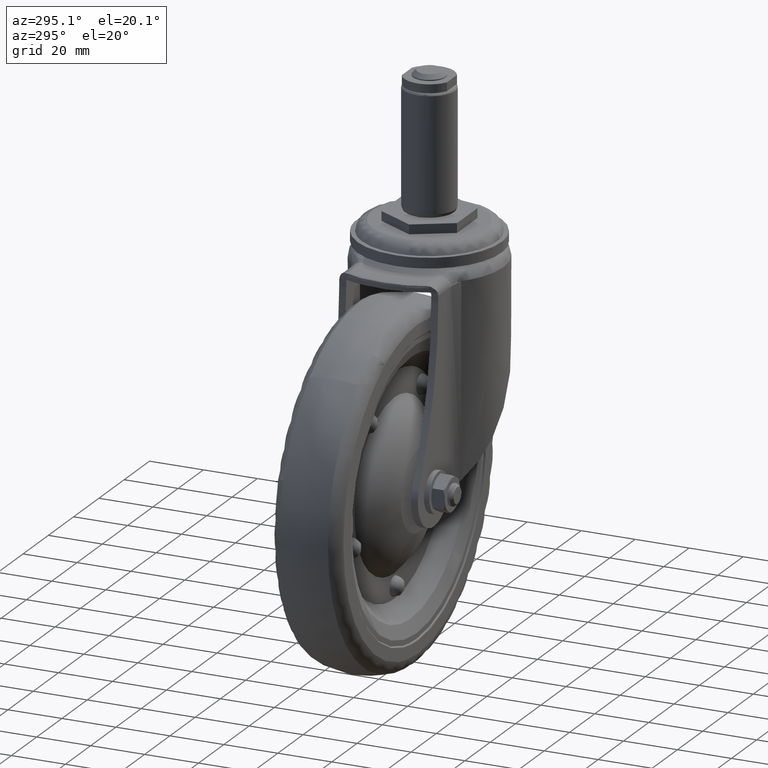
[diagram: clean part render]
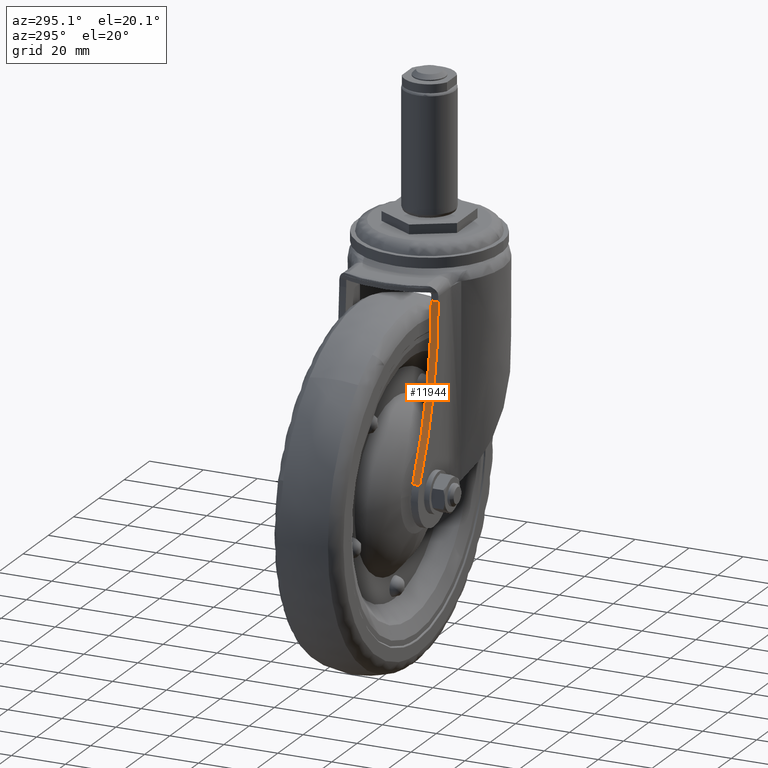
[diagram: same view with one face highlighted and labeled with its STEP entity id]
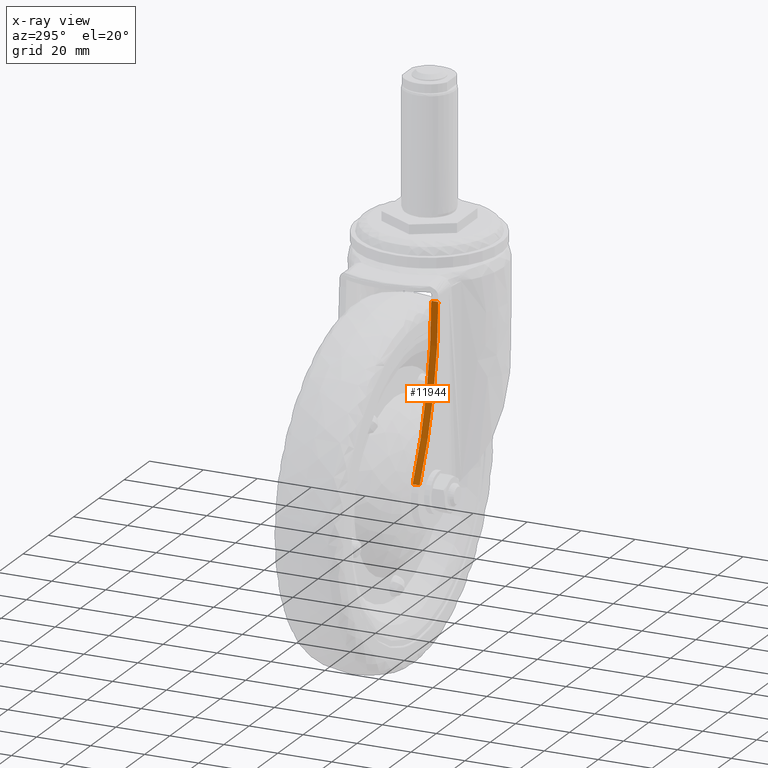
[diagram: x-ray of the same camera — body ghosted, the highlighted face saturated]
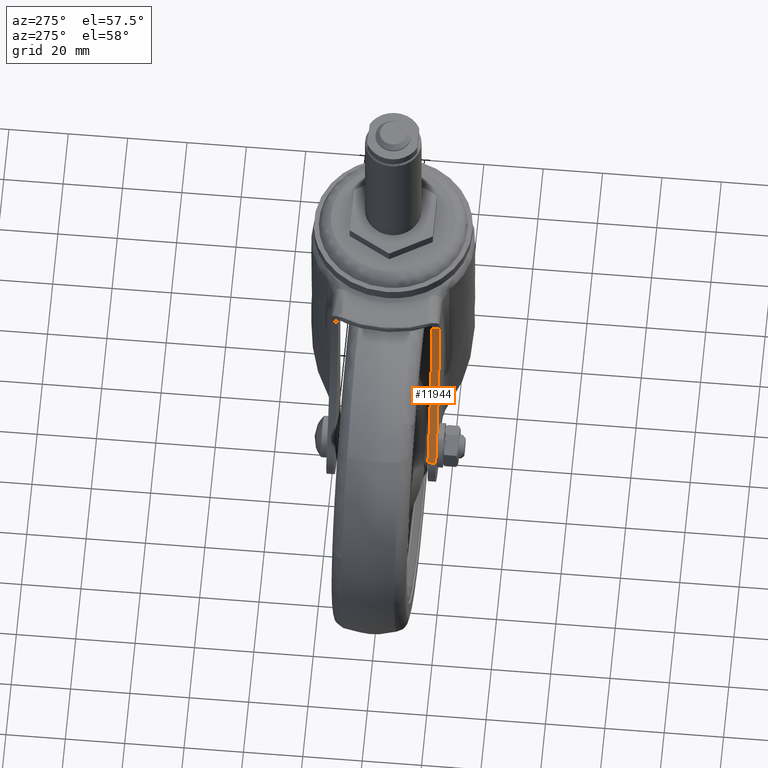
[diagram: same view with one face highlighted and labeled with its STEP entity id]
A machine part, auxiliary view. The second image highlights one B-rep face of the part: STEP entity #11944.
The next image is the same camera in x-ray: the body ghosted, the highlighted face saturated — about 0% of this face is hidden behind the body in this view.
A second angle (auxiliary view) of the same face is appended — the face is thin or edge-on in the first view.
In plain terms, the highlighted face is a freeform B-spline surface patch.
Its self-contained STEP definition (entity closure, byte-faithful):
#11837=CARTESIAN_POINT('',(-32.244650000000000,-18.351751272467698,-18.512373999999902));
#11838=VERTEX_POINT('',#11837);
#11847=CARTESIAN_POINT('',(-32.244650000000000,-15.751749964347701,-18.512373999999902));
#11848=VERTEX_POINT('',#11847);
#11854=CARTESIAN_POINT('',(-32.244650000000000,-15.751749964347701,-18.512373999999902));
#11855=CARTESIAN_POINT('',(-32.244650000000000,-18.351751272467698,-18.512373999999902));
#11856=QUASI_UNIFORM_CURVE('',1,(#11854,#11855),.UNSPECIFIED.,.F.,.U.);
#11857=EDGE_CURVE('',#11848,#11838,#11856,.T.);
#11892=CARTESIAN_POINT('',(-32.281194539522808,-15.686380159783965,-15.403644916659575));
#11893=CARTESIAN_POINT('',(-32.281194539522808,-18.433546078134174,-15.403644916659575));
#11894=CARTESIAN_POINT('',(-31.447822080719373,-15.686380159783962,-50.844934076961451));
#11895=CARTESIAN_POINT('',(-31.447822080719373,-18.433546078134178,-50.844934076961451));
#11896=CARTESIAN_POINT('',(-48.454045885228730,-15.686380159783960,-81.950686582087613));
#11897=CARTESIAN_POINT('',(-48.454045885228730,-18.433546078134178,-81.950686582087613));
#11905=(BOUNDED_SURFACE()B_SPLINE_SURFACE(1,2,((#11892,#11894,#11896),(#11893,#11895,#11897)),.UNSPECIFIED.,.F.,.F.,.U.)B_SPLINE_SURFACE_WITH_KNOTS((2,2),(3,3),(0.0,2.747165918350220),(0.360009859359264,70.035975028717516),.UNSPECIFIED.)GEOMETRIC_REPRESENTATION_ITEM()RATIONAL_B_SPLINE_SURFACE(((0.999626628661481,0.963671481345914,0.995772111227580),(0.999626628661481,0.963671481345914,0.995772111227580)))REPRESENTATION_ITEM('')SURFACE());
#11906=ORIENTED_EDGE('',*,*,#11857,.F.);
#11907=CARTESIAN_POINT('',(-46.989545145059900,-15.766540838777150,-79.195251520684394));
#11908=VERTEX_POINT('',#11907);
#11909=CARTESIAN_POINT('',(-32.244650000000100,-15.751749964347690,-18.512373999999880));
#11910=CARTESIAN_POINT('',(-32.244650000000100,-15.751749964347693,-50.645190672214220));
#11911=CARTESIAN_POINT('',(-46.989545145059900,-15.766540838777150,-79.195251520684394));
#11919=(BOUNDED_CURVE()B_SPLINE_CURVE(2,(#11909,#11910,#11911),.UNSPECIFIED.,.F.,.U.)CURVE()GEOMETRIC_REPRESENTATION_ITEM()QUASI_UNIFORM_CURVE()RATIONAL_B_SPLINE_CURVE((1.0,0.971725696049029,1.0))REPRESENTATION_ITEM(''));
#11920=EDGE_CURVE('',#11848,#11908,#11919,.T.);
#11921=ORIENTED_EDGE('',*,*,#11920,.T.);
#11922=CARTESIAN_POINT('',(-46.989545145059900,-18.366542146897149,-79.195251520684394));
#11923=VERTEX_POINT('',#11922);
#11924=CARTESIAN_POINT('',(-46.989545145059900,-15.766540838777150,-79.195251520684394));
#11925=CARTESIAN_POINT('',(-46.989545145059900,-18.366542146897149,-79.195251520684394));
#11926=QUASI_UNIFORM_CURVE('',1,(#11924,#11925),.UNSPECIFIED.,.F.,.U.);
#11927=EDGE_CURVE('',#11908,#11923,#11926,.T.);
#11928=ORIENTED_EDGE('',*,*,#11927,.T.);
#11929=CARTESIAN_POINT('',(-32.244650000000100,-18.351751272467691,-18.512373999999880));
#11930=CARTESIAN_POINT('',(-32.244650000000100,-18.351751272467691,-50.645190672214220));
#11931=CARTESIAN_POINT('',(-46.989545145059900,-18.366542146897149,-79.195251520684394));
#11939=(BOUNDED_CURVE()B_SPLINE_CURVE(2,(#11929,#11930,#11931),.UNSPECIFIED.,.F.,.U.)CURVE()GEOMETRIC_REPRESENTATION_ITEM()QUASI_UNIFORM_CURVE()RATIONAL_B_SPLINE_CURVE((1.0,0.971725696049029,1.0))REPRESENTATION_ITEM(''));
#11940=EDGE_CURVE('',#11838,#11923,#11939,.T.);
#11941=ORIENTED_EDGE('',*,*,#11940,.F.);
#11942=EDGE_LOOP('',(#11906,#11921,#11928,#11941));
#11943=FACE_OUTER_BOUND('',#11942,.T.);
#11944=ADVANCED_FACE('',(#11943),#11905,.F.);